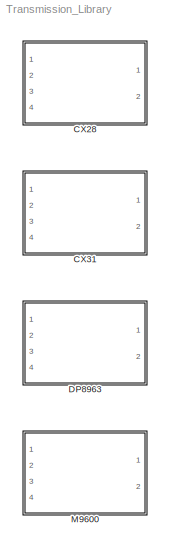
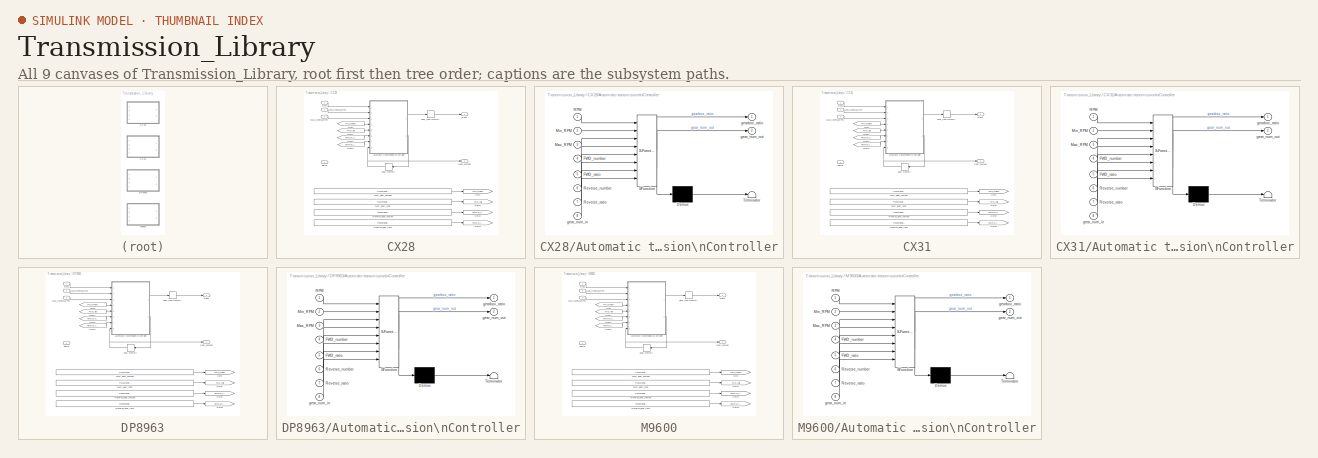
[diagram: thumbnail index - all 9 canvases of the model, root first then tree order]
MODEL Transmission_Library
KIND model
CONFIG PostLoadFcn = %%% BEGIN CX28 CODE %%%\n% Import the data from Excel for a lookup table\ndata = xlsread('Transmission_Specification.xlsx', 'CX28');\nfor idx=1:length(data(:,1))\nif isnan(data(idx,1))\n  break\nend\nTransmission_CX28_FWD_gear_number_raw(idx) = data(idx,1);\nend\nfor idx=1:length(data(:,2))\nif isnan(data(idx,2))\n  break\nend\nTransmission_CX28_FWD_gear_ratio_raw(idx) = data(idx,2);\nend\nif leng...<+4057ch>
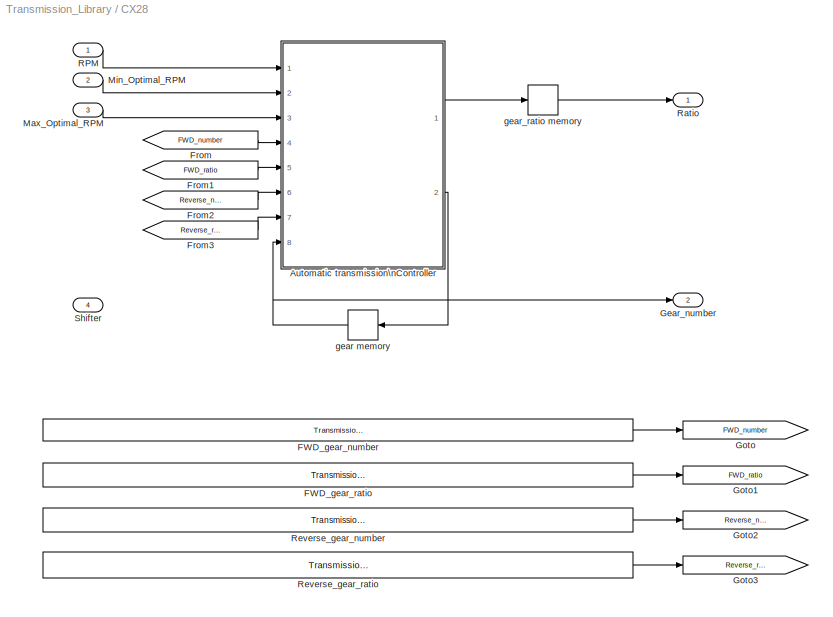
BLOCK [SubSystem] CX28
  FunctionWithSeparateData = off
  MaskHideContents = off
  MinAlgLoopOccurrences = off
  Opaque = off
  Ports = [4, 2]
  PropExecContextOutsideSubsystem = off
  RTWSystemCode = Auto
  RequestExecContextInheritance = off
  SID = 1
BLOCK [SubSystem] CX28/Automatic transmission\nController
  FunctionWithSeparateData = off
  MaskDescription = Embedded MATLAB block
  MaskDisplay = disp('fcn');
  MaskHideContents = off
  MaskIconFrame = on
  MaskIconOpaque = off
  MaskIconRotate = none
  MaskIconUnits = autoscale
  MaskPortRotate = default
  MaskSelfModifiable = on
  MaskType = Stateflow
  MinAlgLoopOccurrences = off
  Opaque = off
  PermitHierarchicalResolution = ExplicitOnly
  Ports = [8, 2]
  PropExecContextOutsideSubsystem = off
  RTWSystemCode = Auto
  RequestExecContextInheritance = off
  SID = 6
  TreatAsAtomicUnit = on
BLOCK [Demux] CX28/Automatic transmission\nController/ Demux 
  Outputs = 1
  Ports = [1, 1]
  SID = 6::15
BLOCK [S-Function] CX28/Automatic transmission\nController/ SFunction 
  EnableBusSupport = on
  FunctionName = sf_sfun
  PortCounts = [8 3]
  Ports = [8, 3]
  SID = 6::14
  Tag = Stateflow S-Function Transmission_Library 4
BLOCK [Terminator] CX28/Automatic transmission\nController/ Terminator 
  SID = 6::17
BLOCK [Inport] CX28/Automatic transmission\nController/FWD_number
  IconDisplay = Port number
  Port = 4
  SID = 6::24
BLOCK [Inport] CX28/Automatic transmission\nController/FWD_ratio
  IconDisplay = Port number
  Port = 5
  SID = 6::25
BLOCK [Inport] CX28/Automatic transmission\nController/Max_RPM
  IconDisplay = Port number
  Port = 3
  SID = 6::22
BLOCK [Inport] CX28/Automatic transmission\nController/Min_RPM
  IconDisplay = Port number
  Port = 2
  SID = 6::21
BLOCK [Inport] CX28/Automatic transmission\nController/RPM
  IconDisplay = Port number
  SID = 6::1
BLOCK [Inport] CX28/Automatic transmission\nController/Reverse_number
  IconDisplay = Port number
  Port = 6
  SID = 6::26
BLOCK [Inport] CX28/Automatic transmission\nController/Reverse_ratio
  IconDisplay = Port number
  Port = 7
  SID = 6::27
BLOCK [Inport] CX28/Automatic transmission\nController/gear_num_in
  IconDisplay = Port number
  Port = 8
  SID = 6::19
BLOCK [Outport] CX28/Automatic transmission\nController/gear_num_out
  IconDisplay = Port number
  Port = 2
  SID = 6::5
BLOCK [Outport] CX28/Automatic transmission\nController/gearbox_ratio
  IconDisplay = Port number
  SID = 6::20
BLOCK [Constant] CX28/FWD_gear_number
  SID = 7
  Value = Transmission_CX28_FWD_gear_number_raw
BLOCK [Constant] CX28/FWD_gear_ratio
  SID = 8
  Value = Transmission_CX28_FWD_gear_ratio_raw
BLOCK [From] CX28/From
  GotoTag = FWD_number
  SID = 9
BLOCK [From] CX28/From1
  GotoTag = FWD_ratio
  SID = 10
BLOCK [From] CX28/From2
  GotoTag = Reverse_number
  SID = 11
BLOCK [From] CX28/From3
  GotoTag = Reverse_ratio
  SID = 12
BLOCK [Outport] CX28/Gear_number
  IconDisplay = Port number
  Port = 2
  SID = 22
BLOCK [Goto] CX28/Goto
  GotoTag = FWD_number
  SID = 13
  TagVisibility = local
BLOCK [Goto] CX28/Goto1
  GotoTag = FWD_ratio
  SID = 14
  TagVisibility = local
BLOCK [Goto] CX28/Goto2
  GotoTag = Reverse_number
  SID = 15
  TagVisibility = local
BLOCK [Goto] CX28/Goto3
  GotoTag = Reverse_ratio
  SID = 16
  TagVisibility = local
BLOCK [Inport] CX28/Max_Optimal_RPM
  IconDisplay = Port number
  Port = 3
  SID = 4
BLOCK [Inport] CX28/Min_Optimal_RPM
  IconDisplay = Port number
  Port = 2
  SID = 3
BLOCK [Inport] CX28/RPM
  IconDisplay = Port number
  SID = 2
BLOCK [Outport] CX28/Ratio
  IconDisplay = Port number
  SID = 21
BLOCK [Constant] CX28/Reverse_gear_number
  SID = 17
  Value = Transmission_CX28_Reverse_gear_number_raw
BLOCK [Constant] CX28/Reverse_gear_ratio
  SID = 18
  Value = Transmission_CX28_Reverse_gear_ratio_raw
BLOCK [Inport] CX28/Shifter
  IconDisplay = Port number
  Port = 4
  SID = 5
BLOCK [Memory] CX28/gear memory
  SID = 19
  X0 = 1
BLOCK [Memory] CX28/gear_ratio memory
  SID = 20
  X0 = 1
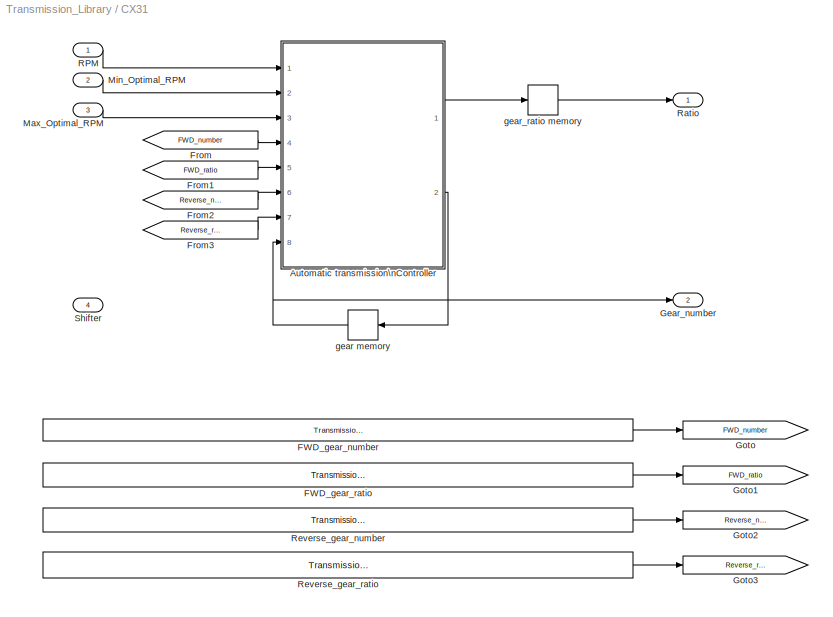
BLOCK [SubSystem] CX31
  FunctionWithSeparateData = off
  MaskHideContents = off
  MinAlgLoopOccurrences = off
  Opaque = off
  Ports = [4, 2]
  PropExecContextOutsideSubsystem = off
  RTWSystemCode = Auto
  RequestExecContextInheritance = off
  SID = 23
BLOCK [SubSystem] CX31/Automatic transmission\nController
  FunctionWithSeparateData = off
  MaskDescription = Embedded MATLAB block
  MaskDisplay = disp('fcn');
  MaskHideContents = off
  MaskIconFrame = on
  MaskIconOpaque = off
  MaskIconRotate = none
  MaskIconUnits = autoscale
  MaskPortRotate = default
  MaskSelfModifiable = on
  MaskType = Stateflow
  MinAlgLoopOccurrences = off
  Opaque = off
  PermitHierarchicalResolution = ExplicitOnly
  Ports = [8, 2]
  PropExecContextOutsideSubsystem = off
  RTWSystemCode = Auto
  RequestExecContextInheritance = off
  SID = 28
  TreatAsAtomicUnit = on
BLOCK [Demux] CX31/Automatic transmission\nController/ Demux 
  Outputs = 1
  Ports = [1, 1]
  SID = 28::15
BLOCK [S-Function] CX31/Automatic transmission\nController/ SFunction 
  EnableBusSupport = on
  FunctionName = sf_sfun
  PortCounts = [8 3]
  Ports = [8, 3]
  SID = 28::14
  Tag = Stateflow S-Function Transmission_Library 1
BLOCK [Terminator] CX31/Automatic transmission\nController/ Terminator 
  SID = 28::17
BLOCK [Inport] CX31/Automatic transmission\nController/FWD_number
  IconDisplay = Port number
  Port = 4
  SID = 28::24
BLOCK [Inport] CX31/Automatic transmission\nController/FWD_ratio
  IconDisplay = Port number
  Port = 5
  SID = 28::25
BLOCK [Inport] CX31/Automatic transmission\nController/Max_RPM
  IconDisplay = Port number
  Port = 3
  SID = 28::22
BLOCK [Inport] CX31/Automatic transmission\nController/Min_RPM
  IconDisplay = Port number
  Port = 2
  SID = 28::21
BLOCK [Inport] CX31/Automatic transmission\nController/RPM
  IconDisplay = Port number
  SID = 28::1
BLOCK [Inport] CX31/Automatic transmission\nController/Reverse_number
  IconDisplay = Port number
  Port = 6
  SID = 28::26
BLOCK [Inport] CX31/Automatic transmission\nController/Reverse_ratio
  IconDisplay = Port number
  Port = 7
  SID = 28::27
BLOCK [Inport] CX31/Automatic transmission\nController/gear_num_in
  IconDisplay = Port number
  Port = 8
  SID = 28::19
BLOCK [Outport] CX31/Automatic transmission\nController/gear_num_out
  IconDisplay = Port number
  Port = 2
  SID = 28::5
BLOCK [Outport] CX31/Automatic transmission\nController/gearbox_ratio
  IconDisplay = Port number
  SID = 28::20
BLOCK [Constant] CX31/FWD_gear_number
  SID = 29
  Value = Transmission_CX31_FWD_gear_number_raw
BLOCK [Constant] CX31/FWD_gear_ratio
  SID = 30
  Value = Transmission_CX31_FWD_gear_ratio_raw
BLOCK [From] CX31/From
  GotoTag = FWD_number
  SID = 31
BLOCK [From] CX31/From1
  GotoTag = FWD_ratio
  SID = 32
BLOCK [From] CX31/From2
  GotoTag = Reverse_number
  SID = 33
BLOCK [From] CX31/From3
  GotoTag = Reverse_ratio
  SID = 34
BLOCK [Outport] CX31/Gear_number
  IconDisplay = Port number
  Port = 2
  SID = 44
BLOCK [Goto] CX31/Goto
  GotoTag = FWD_number
  SID = 35
  TagVisibility = local
BLOCK [Goto] CX31/Goto1
  GotoTag = FWD_ratio
  SID = 36
  TagVisibility = local
BLOCK [Goto] CX31/Goto2
  GotoTag = Reverse_number
  SID = 37
  TagVisibility = local
BLOCK [Goto] CX31/Goto3
  GotoTag = Reverse_ratio
  SID = 38
  TagVisibility = local
BLOCK [Inport] CX31/Max_Optimal_RPM
  IconDisplay = Port number
  Port = 3
  SID = 26
BLOCK [Inport] CX31/Min_Optimal_RPM
  IconDisplay = Port number
  Port = 2
  SID = 25
BLOCK [Inport] CX31/RPM
  IconDisplay = Port number
  SID = 24
BLOCK [Outport] CX31/Ratio
  IconDisplay = Port number
  SID = 43
BLOCK [Constant] CX31/Reverse_gear_number
  SID = 39
  Value = Transmission_CX31_Reverse_gear_number_raw
BLOCK [Constant] CX31/Reverse_gear_ratio
  SID = 40
  Value = Transmission_CX31_Reverse_gear_ratio_raw
BLOCK [Inport] CX31/Shifter
  IconDisplay = Port number
  Port = 4
  SID = 27
BLOCK [Memory] CX31/gear memory
  SID = 41
  X0 = 1
BLOCK [Memory] CX31/gear_ratio memory
  SID = 42
  X0 = 1
BLOCK [SubSystem] DP8963
  FunctionWithSeparateData = off
  MaskHideContents = off
  MinAlgLoopOccurrences = off
  Opaque = off
  Ports = [4, 2]
  PropExecContextOutsideSubsystem = off
  RTWSystemCode = Auto
  RequestExecContextInheritance = off
  SID = 45
BLOCK [SubSystem] DP8963/Automatic transmission\nController
  FunctionWithSeparateData = off
  MaskDescription = Embedded MATLAB block
  MaskDisplay = disp('fcn');
  MaskHideContents = off
  MaskIconFrame = on
  MaskIconOpaque = off
  MaskIconRotate = none
  MaskIconUnits = autoscale
  MaskPortRotate = default
  MaskSelfModifiable = on
  MaskType = Stateflow
  MinAlgLoopOccurrences = off
  Opaque = off
  PermitHierarchicalResolution = ExplicitOnly
  Ports = [8, 2]
  PropExecContextOutsideSubsystem = off
  RTWSystemCode = Auto
  RequestExecContextInheritance = off
  SID = 50
  TreatAsAtomicUnit = on
BLOCK [Demux] DP8963/Automatic transmission\nController/ Demux 
  Outputs = 1
  Ports = [1, 1]
  SID = 50::15
BLOCK [S-Function] DP8963/Automatic transmission\nController/ SFunction 
  EnableBusSupport = on
  FunctionName = sf_sfun
  PortCounts = [8 3]
  Ports = [8, 3]
  SID = 50::14
  Tag = Stateflow S-Function Transmission_Library 2
BLOCK [Terminator] DP8963/Automatic transmission\nController/ Terminator 
  SID = 50::17
BLOCK [Inport] DP8963/Automatic transmission\nController/FWD_number
  IconDisplay = Port number
  Port = 4
  SID = 50::24
BLOCK [Inport] DP8963/Automatic transmission\nController/FWD_ratio
  IconDisplay = Port number
  Port = 5
  SID = 50::25
BLOCK [Inport] DP8963/Automatic transmission\nController/Max_RPM
  IconDisplay = Port number
  Port = 3
  SID = 50::22
BLOCK [Inport] DP8963/Automatic transmission\nController/Min_RPM
  IconDisplay = Port number
  Port = 2
  SID = 50::21
BLOCK [Inport] DP8963/Automatic transmission\nController/RPM
  IconDisplay = Port number
  SID = 50::1
BLOCK [Inport] DP8963/Automatic transmission\nController/Reverse_number
  IconDisplay = Port number
  Port = 6
  SID = 50::26
BLOCK [Inport] DP8963/Automatic transmission\nController/Reverse_ratio
  IconDisplay = Port number
  Port = 7
  SID = 50::27
BLOCK [Inport] DP8963/Automatic transmission\nController/gear_num_in
  IconDisplay = Port number
  Port = 8
  SID = 50::19
BLOCK [Outport] DP8963/Automatic transmission\nController/gear_num_out
  IconDisplay = Port number
  Port = 2
  SID = 50::5
BLOCK [Outport] DP8963/Automatic transmission\nController/gearbox_ratio
  IconDisplay = Port number
  SID = 50::20
BLOCK [Constant] DP8963/FWD_gear_number
  SID = 51
  Value = Transmission_DP8963_FWD_gear_number_raw
BLOCK [Constant] DP8963/FWD_gear_ratio
  SID = 52
  Value = Transmission_DP8963_FWD_gear_ratio_raw
BLOCK [From] DP8963/From
  GotoTag = FWD_number
  SID = 53
BLOCK [From] DP8963/From1
  GotoTag = FWD_ratio
  SID = 54
BLOCK [From] DP8963/From2
  GotoTag = Reverse_number
  SID = 55
BLOCK [From] DP8963/From3
  GotoTag = Reverse_ratio
  SID = 56
BLOCK [Outport] DP8963/Gear_number
  IconDisplay = Port number
  Port = 2
  SID = 66
BLOCK [Goto] DP8963/Goto
  GotoTag = FWD_number
  SID = 57
  TagVisibility = local
BLOCK [Goto] DP8963/Goto1
  GotoTag = FWD_ratio
  SID = 58
  TagVisibility = local
BLOCK [Goto] DP8963/Goto2
  GotoTag = Reverse_number
  SID = 59
  TagVisibility = local
BLOCK [Goto] DP8963/Goto3
  GotoTag = Reverse_ratio
  SID = 60
  TagVisibility = local
BLOCK [Inport] DP8963/Max_Optimal_RPM
  IconDisplay = Port number
  Port = 3
  SID = 48
BLOCK [Inport] DP8963/Min_Optimal_RPM
  IconDisplay = Port number
  Port = 2
  SID = 47
BLOCK [Inport] DP8963/RPM
  IconDisplay = Port number
  SID = 46
BLOCK [Outport] DP8963/Ratio
  IconDisplay = Port number
  SID = 65
BLOCK [Constant] DP8963/Reverse_gear_number
  SID = 61
  Value = Transmission_DP8963_Reverse_gear_number_raw
BLOCK [Constant] DP8963/Reverse_gear_ratio
  SID = 62
  Value = Transmission_DP8963_Reverse_gear_ratio_raw
BLOCK [Inport] DP8963/Shifter
  IconDisplay = Port number
  Port = 4
  SID = 49
BLOCK [Memory] DP8963/gear memory
  SID = 63
  X0 = 1
BLOCK [Memory] DP8963/gear_ratio memory
  SID = 64
  X0 = 1
BLOCK [SubSystem] M9600
  FunctionWithSeparateData = off
  MaskHideContents = off
  MinAlgLoopOccurrences = off
  Opaque = off
  Ports = [4, 2]
  PropExecContextOutsideSubsystem = off
  RTWSystemCode = Auto
  RequestExecContextInheritance = off
  SID = 67
BLOCK [SubSystem] M9600/Automatic transmission\nController
  FunctionWithSeparateData = off
  MaskDescription = Embedded MATLAB block
  MaskDisplay = disp('fcn');
  MaskHideContents = off
  MaskIconFrame = on
  MaskIconOpaque = off
  MaskIconRotate = none
  MaskIconUnits = autoscale
  MaskPortRotate = default
  MaskSelfModifiable = on
  MaskType = Stateflow
  MinAlgLoopOccurrences = off
  Opaque = off
  PermitHierarchicalResolution = ExplicitOnly
  Ports = [8, 2]
  PropExecContextOutsideSubsystem = off
  RTWSystemCode = Auto
  RequestExecContextInheritance = off
  SID = 72
  TreatAsAtomicUnit = on
BLOCK [Demux] M9600/Automatic transmission\nController/ Demux 
  Outputs = 1
  Ports = [1, 1]
  SID = 72::15
BLOCK [S-Function] M9600/Automatic transmission\nController/ SFunction 
  EnableBusSupport = on
  FunctionName = sf_sfun
  PortCounts = [8 3]
  Ports = [8, 3]
  SID = 72::14
  Tag = Stateflow S-Function Transmission_Library 3
BLOCK [Terminator] M9600/Automatic transmission\nController/ Terminator 
  SID = 72::17
BLOCK [Inport] M9600/Automatic transmission\nController/FWD_number
  IconDisplay = Port number
  Port = 4
  SID = 72::24
BLOCK [Inport] M9600/Automatic transmission\nController/FWD_ratio
  IconDisplay = Port number
  Port = 5
  SID = 72::25
BLOCK [Inport] M9600/Automatic transmission\nController/Max_RPM
  IconDisplay = Port number
  Port = 3
  SID = 72::22
BLOCK [Inport] M9600/Automatic transmission\nController/Min_RPM
  IconDisplay = Port number
  Port = 2
  SID = 72::21
BLOCK [Inport] M9600/Automatic transmission\nController/RPM
  IconDisplay = Port number
  SID = 72::1
BLOCK [Inport] M9600/Automatic transmission\nController/Reverse_number
  IconDisplay = Port number
  Port = 6
  SID = 72::26
BLOCK [Inport] M9600/Automatic transmission\nController/Reverse_ratio
  IconDisplay = Port number
  Port = 7
  SID = 72::27
BLOCK [Inport] M9600/Automatic transmission\nController/gear_num_in
  IconDisplay = Port number
  Port = 8
  SID = 72::19
BLOCK [Outport] M9600/Automatic transmission\nController/gear_num_out
  IconDisplay = Port number
  Port = 2
  SID = 72::5
BLOCK [Outport] M9600/Automatic transmission\nController/gearbox_ratio
  IconDisplay = Port number
  SID = 72::20
BLOCK [Constant] M9600/FWD_gear_number
  SID = 73
  Value = Transmission_M9600_FWD_gear_number_raw
BLOCK [Constant] M9600/FWD_gear_ratio
  SID = 74
  Value = Transmission_M9600_FWD_gear_ratio_raw
BLOCK [From] M9600/From
  GotoTag = FWD_number
  SID = 75
BLOCK [From] M9600/From1
  GotoTag = FWD_ratio
  SID = 76
BLOCK [From] M9600/From2
  GotoTag = Reverse_number
  SID = 77
BLOCK [From] M9600/From3
  GotoTag = Reverse_ratio
  SID = 78
BLOCK [Outport] M9600/Gear_number
  IconDisplay = Port number
  Port = 2
  SID = 88
BLOCK [Goto] M9600/Goto
  GotoTag = FWD_number
  SID = 79
  TagVisibility = local
BLOCK [Goto] M9600/Goto1
  GotoTag = FWD_ratio
  SID = 80
  TagVisibility = local
BLOCK [Goto] M9600/Goto2
  GotoTag = Reverse_number
  SID = 81
  TagVisibility = local
BLOCK [Goto] M9600/Goto3
  GotoTag = Reverse_ratio
  SID = 82
  TagVisibility = local
BLOCK [Inport] M9600/Max_Optimal_RPM
  IconDisplay = Port number
  Port = 3
  SID = 70
BLOCK [Inport] M9600/Min_Optimal_RPM
  IconDisplay = Port number
  Port = 2
  SID = 69
BLOCK [Inport] M9600/RPM
  IconDisplay = Port number
  SID = 68
BLOCK [Outport] M9600/Ratio
  IconDisplay = Port number
  SID = 87
BLOCK [Constant] M9600/Reverse_gear_number
  SID = 83
  Value = Transmission_M9600_Reverse_gear_number_raw
BLOCK [Constant] M9600/Reverse_gear_ratio
  SID = 84
  Value = Transmission_M9600_Reverse_gear_ratio_raw
BLOCK [Inport] M9600/Shifter
  IconDisplay = Port number
  Port = 4
  SID = 71
BLOCK [Memory] M9600/gear memory
  SID = 85
  X0 = 1
BLOCK [Memory] M9600/gear_ratio memory
  SID = 86
  X0 = 1
LINE CX28/Automatic transmission\nController/ Demux :1 -> CX28/Automatic transmission\nController/ Terminator :1
LINE CX28/Automatic transmission\nController/ SFunction :1 -> CX28/Automatic transmission\nController/ Demux :1
LINE CX28/Automatic transmission\nController/ SFunction :2 -> CX28/Automatic transmission\nController/gearbox_ratio:1
LINE CX28/Automatic transmission\nController/ SFunction :3 -> CX28/Automatic transmission\nController/gear_num_out:1
LINE CX28/Automatic transmission\nController/FWD_number:1 -> CX28/Automatic transmission\nController/ SFunction :4
LINE CX28/Automatic transmission\nController/FWD_ratio:1 -> CX28/Automatic transmission\nController/ SFunction :5
LINE CX28/Automatic transmission\nController/Max_RPM:1 -> CX28/Automatic transmission\nController/ SFunction :3
LINE CX28/Automatic transmission\nController/Min_RPM:1 -> CX28/Automatic transmission\nController/ SFunction :2
LINE CX28/Automatic transmission\nController/RPM:1 -> CX28/Automatic transmission\nController/ SFunction :1
LINE CX28/Automatic transmission\nController/Reverse_number:1 -> CX28/Automatic transmission\nController/ SFunction :6
LINE CX28/Automatic transmission\nController/Reverse_ratio:1 -> CX28/Automatic transmission\nController/ SFunction :7
LINE CX28/Automatic transmission\nController/gear_num_in:1 -> CX28/Automatic transmission\nController/ SFunction :8
LINE CX28/Automatic transmission\nController:1 -> CX28/gear_ratio memory:1
LINE CX28/Automatic transmission\nController:2 -> CX28/gear memory:1
LINE CX28/FWD_gear_number:1 -> CX28/Goto:1
LINE CX28/FWD_gear_ratio:1 -> CX28/Goto1:1
LINE CX28/From1:1 -> CX28/Automatic transmission\nController:5
LINE CX28/From2:1 -> CX28/Automatic transmission\nController:6
LINE CX28/From3:1 -> CX28/Automatic transmission\nController:7
LINE CX28/From:1 -> CX28/Automatic transmission\nController:4
LINE CX28/Max_Optimal_RPM:1 -> CX28/Automatic transmission\nController:3
LINE CX28/Min_Optimal_RPM:1 -> CX28/Automatic transmission\nController:2
LINE CX28/RPM:1 -> CX28/Automatic transmission\nController:1
LINE CX28/Reverse_gear_number:1 -> CX28/Goto2:1
LINE CX28/Reverse_gear_ratio:1 -> CX28/Goto3:1
NET CX28/gear memory:1 -> CX28/Automatic transmission\nController:8, CX28/Gear_number:1
LINE CX28/gear_ratio memory:1 -> CX28/Ratio:1
LINE CX31/Automatic transmission\nController/ Demux :1 -> CX31/Automatic transmission\nController/ Terminator :1
LINE CX31/Automatic transmission\nController/ SFunction :1 -> CX31/Automatic transmission\nController/ Demux :1
LINE CX31/Automatic transmission\nController/ SFunction :2 -> CX31/Automatic transmission\nController/gearbox_ratio:1
LINE CX31/Automatic transmission\nController/ SFunction :3 -> CX31/Automatic transmission\nController/gear_num_out:1
LINE CX31/Automatic transmission\nController/FWD_number:1 -> CX31/Automatic transmission\nController/ SFunction :4
LINE CX31/Automatic transmission\nController/FWD_ratio:1 -> CX31/Automatic transmission\nController/ SFunction :5
LINE CX31/Automatic transmission\nController/Max_RPM:1 -> CX31/Automatic transmission\nController/ SFunction :3
LINE CX31/Automatic transmission\nController/Min_RPM:1 -> CX31/Automatic transmission\nController/ SFunction :2
LINE CX31/Automatic transmission\nController/RPM:1 -> CX31/Automatic transmission\nController/ SFunction :1
LINE CX31/Automatic transmission\nController/Reverse_number:1 -> CX31/Automatic transmission\nController/ SFunction :6
LINE CX31/Automatic transmission\nController/Reverse_ratio:1 -> CX31/Automatic transmission\nController/ SFunction :7
LINE CX31/Automatic transmission\nController/gear_num_in:1 -> CX31/Automatic transmission\nController/ SFunction :8
LINE CX31/Automatic transmission\nController:1 -> CX31/gear_ratio memory:1
LINE CX31/Automatic transmission\nController:2 -> CX31/gear memory:1
LINE CX31/FWD_gear_number:1 -> CX31/Goto:1
LINE CX31/FWD_gear_ratio:1 -> CX31/Goto1:1
LINE CX31/From1:1 -> CX31/Automatic transmission\nController:5
LINE CX31/From2:1 -> CX31/Automatic transmission\nController:6
LINE CX31/From3:1 -> CX31/Automatic transmission\nController:7
LINE CX31/From:1 -> CX31/Automatic transmission\nController:4
LINE CX31/Max_Optimal_RPM:1 -> CX31/Automatic transmission\nController:3
LINE CX31/Min_Optimal_RPM:1 -> CX31/Automatic transmission\nController:2
LINE CX31/RPM:1 -> CX31/Automatic transmission\nController:1
LINE CX31/Reverse_gear_number:1 -> CX31/Goto2:1
LINE CX31/Reverse_gear_ratio:1 -> CX31/Goto3:1
NET CX31/gear memory:1 -> CX31/Automatic transmission\nController:8, CX31/Gear_number:1
LINE CX31/gear_ratio memory:1 -> CX31/Ratio:1
LINE DP8963/Automatic transmission\nController/ Demux :1 -> DP8963/Automatic transmission\nController/ Terminator :1
LINE DP8963/Automatic transmission\nController/ SFunction :1 -> DP8963/Automatic transmission\nController/ Demux :1
LINE DP8963/Automatic transmission\nController/ SFunction :2 -> DP8963/Automatic transmission\nController/gearbox_ratio:1
LINE DP8963/Automatic transmission\nController/ SFunction :3 -> DP8963/Automatic transmission\nController/gear_num_out:1
LINE DP8963/Automatic transmission\nController/FWD_number:1 -> DP8963/Automatic transmission\nController/ SFunction :4
LINE DP8963/Automatic transmission\nController/FWD_ratio:1 -> DP8963/Automatic transmission\nController/ SFunction :5
LINE DP8963/Automatic transmission\nController/Max_RPM:1 -> DP8963/Automatic transmission\nController/ SFunction :3
LINE DP8963/Automatic transmission\nController/Min_RPM:1 -> DP8963/Automatic transmission\nController/ SFunction :2
LINE DP8963/Automatic transmission\nController/RPM:1 -> DP8963/Automatic transmission\nController/ SFunction :1
LINE DP8963/Automatic transmission\nController/Reverse_number:1 -> DP8963/Automatic transmission\nController/ SFunction :6
LINE DP8963/Automatic transmission\nController/Reverse_ratio:1 -> DP8963/Automatic transmission\nController/ SFunction :7
LINE DP8963/Automatic transmission\nController/gear_num_in:1 -> DP8963/Automatic transmission\nController/ SFunction :8
LINE DP8963/Automatic transmission\nController:1 -> DP8963/gear_ratio memory:1
LINE DP8963/Automatic transmission\nController:2 -> DP8963/gear memory:1
LINE DP8963/FWD_gear_number:1 -> DP8963/Goto:1
LINE DP8963/FWD_gear_ratio:1 -> DP8963/Goto1:1
LINE DP8963/From1:1 -> DP8963/Automatic transmission\nController:5
LINE DP8963/From2:1 -> DP8963/Automatic transmission\nController:6
LINE DP8963/From3:1 -> DP8963/Automatic transmission\nController:7
LINE DP8963/From:1 -> DP8963/Automatic transmission\nController:4
LINE DP8963/Max_Optimal_RPM:1 -> DP8963/Automatic transmission\nController:3
LINE DP8963/Min_Optimal_RPM:1 -> DP8963/Automatic transmission\nController:2
LINE DP8963/RPM:1 -> DP8963/Automatic transmission\nController:1
LINE DP8963/Reverse_gear_number:1 -> DP8963/Goto2:1
LINE DP8963/Reverse_gear_ratio:1 -> DP8963/Goto3:1
NET DP8963/gear memory:1 -> DP8963/Automatic transmission\nController:8, DP8963/Gear_number:1
LINE DP8963/gear_ratio memory:1 -> DP8963/Ratio:1
LINE M9600/Automatic transmission\nController/ Demux :1 -> M9600/Automatic transmission\nController/ Terminator :1
LINE M9600/Automatic transmission\nController/ SFunction :1 -> M9600/Automatic transmission\nController/ Demux :1
LINE M9600/Automatic transmission\nController/ SFunction :2 -> M9600/Automatic transmission\nController/gearbox_ratio:1
LINE M9600/Automatic transmission\nController/ SFunction :3 -> M9600/Automatic transmission\nController/gear_num_out:1
LINE M9600/Automatic transmission\nController/FWD_number:1 -> M9600/Automatic transmission\nController/ SFunction :4
LINE M9600/Automatic transmission\nController/FWD_ratio:1 -> M9600/Automatic transmission\nController/ SFunction :5
LINE M9600/Automatic transmission\nController/Max_RPM:1 -> M9600/Automatic transmission\nController/ SFunction :3
LINE M9600/Automatic transmission\nController/Min_RPM:1 -> M9600/Automatic transmission\nController/ SFunction :2
LINE M9600/Automatic transmission\nController/RPM:1 -> M9600/Automatic transmission\nController/ SFunction :1
LINE M9600/Automatic transmission\nController/Reverse_number:1 -> M9600/Automatic transmission\nController/ SFunction :6
LINE M9600/Automatic transmission\nController/Reverse_ratio:1 -> M9600/Automatic transmission\nController/ SFunction :7
LINE M9600/Automatic transmission\nController/gear_num_in:1 -> M9600/Automatic transmission\nController/ SFunction :8
LINE M9600/Automatic transmission\nController:1 -> M9600/gear_ratio memory:1
LINE M9600/Automatic transmission\nController:2 -> M9600/gear memory:1
LINE M9600/FWD_gear_number:1 -> M9600/Goto:1
LINE M9600/FWD_gear_ratio:1 -> M9600/Goto1:1
LINE M9600/From1:1 -> M9600/Automatic transmission\nController:5
LINE M9600/From2:1 -> M9600/Automatic transmission\nController:6
LINE M9600/From3:1 -> M9600/Automatic transmission\nController:7
LINE M9600/From:1 -> M9600/Automatic transmission\nController:4
LINE M9600/Max_Optimal_RPM:1 -> M9600/Automatic transmission\nController:3
LINE M9600/Min_Optimal_RPM:1 -> M9600/Automatic transmission\nController:2
LINE M9600/RPM:1 -> M9600/Automatic transmission\nController:1
LINE M9600/Reverse_gear_number:1 -> M9600/Goto2:1
LINE M9600/Reverse_gear_ratio:1 -> M9600/Goto3:1
NET M9600/gear memory:1 -> M9600/Automatic transmission\nController:8, M9600/Gear_number:1
LINE M9600/gear_ratio memory:1 -> M9600/Ratio:1
note: NET lines group one-source signal fan-out (src -> all destinations, sorted); 1:1 wires keep LINE
CHART CX31/Automatic transmission\nController states=1 transitions=1
  STATE_LABEL 'eML_blk_kernel()'
CHART DP8963/Automatic transmission\nController states=1 transitions=1
  STATE_LABEL 'eML_blk_kernel()'
CHART M9600/Automatic transmission\nController states=1 transitions=1
  STATE_LABEL 'eML_blk_kernel()'
CHART CX28/Automatic transmission\nController states=1 transitions=1
  STATE_LABEL 'eML_blk_kernel()'
